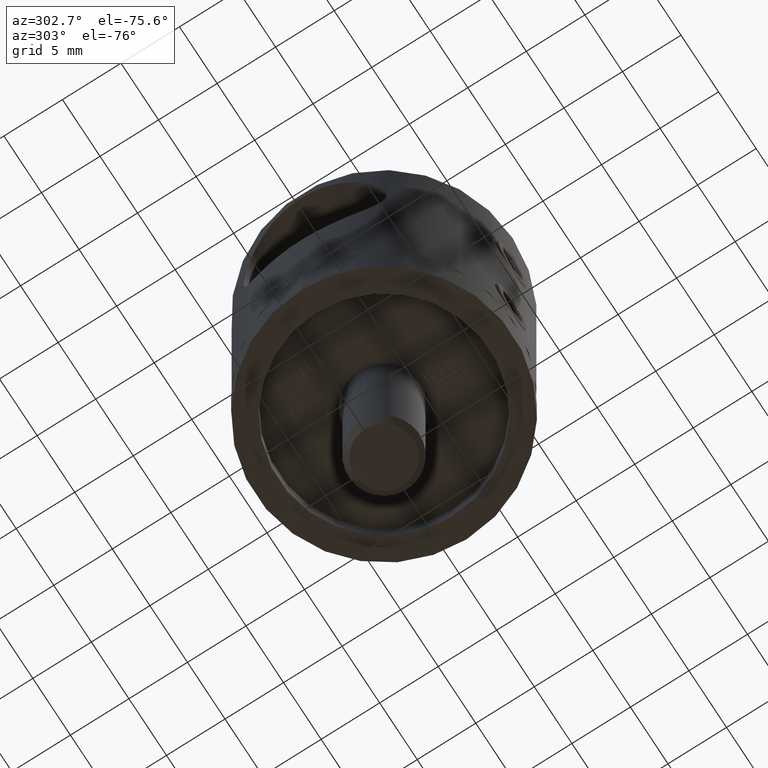
[diagram: clean part render]
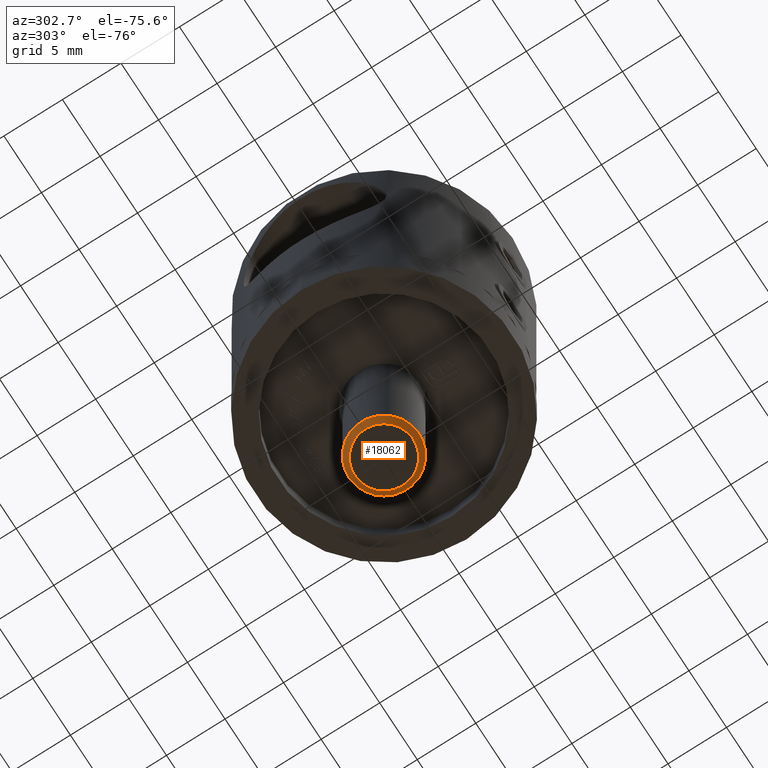
[diagram: same view with one face highlighted and labeled with its STEP entity id]
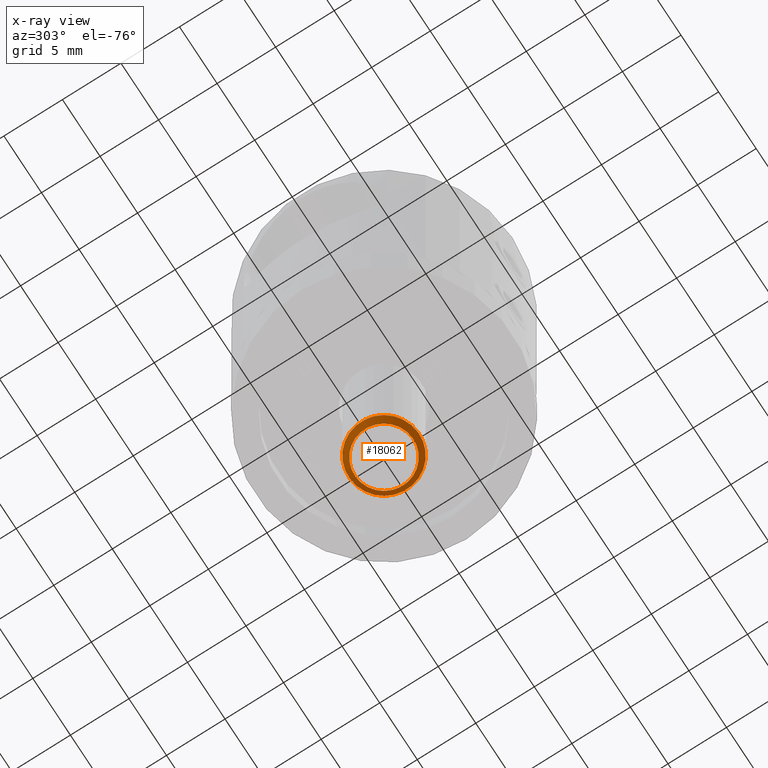
[diagram: x-ray of the same camera — body ghosted, the highlighted face saturated]
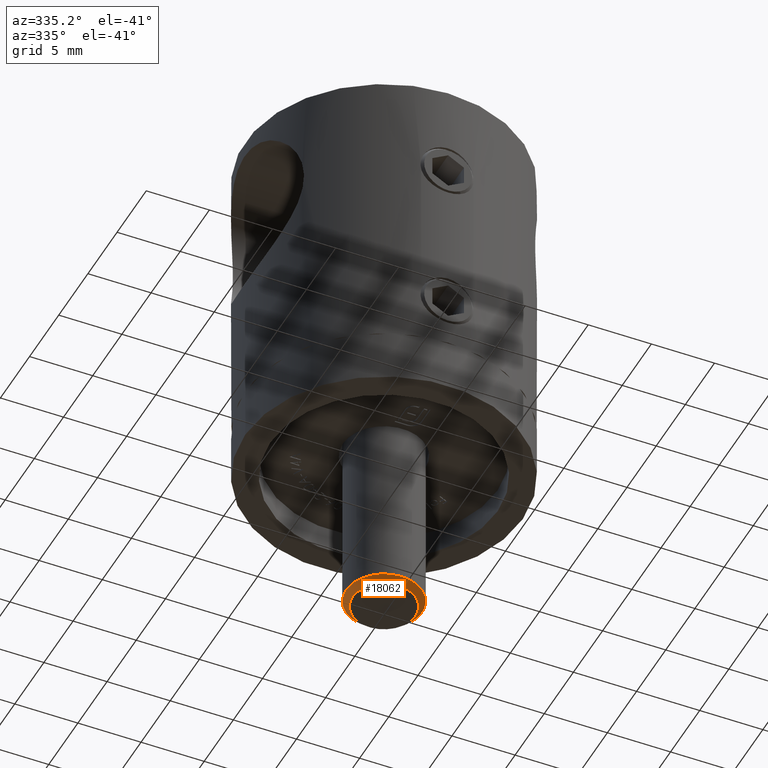
[diagram: same view with one face highlighted and labeled with its STEP entity id]
A machine part, auxiliary view. The second image highlights one B-rep face of the part: STEP entity #18062.
The next image is the same camera in x-ray: the body ghosted, the highlighted face saturated — about 0% of this face is hidden behind the body in this view.
A second angle (auxiliary view) of the same face is appended — the face is thin or edge-on in the first view.
In plain terms, the highlighted conical surface has half-angle 45 deg.
Its self-contained STEP definition (entity closure, byte-faithful):
#2823 = CIRCLE ( 'NONE', #16613, 2.500000000000010214 ) ;
#2887 = DIRECTION ( 'NONE',  ( -3.081487911019577365E-33, 1.000000000000000000, -1.725633230170963324E-31 ) ) ;
#2898 = ORIENTED_EDGE ( 'NONE', *, *, #20961, .F. ) ;
#3220 = CARTESIAN_POINT ( 'NONE',  ( -4.814824860968089633E-32, -11.99999999999999645, -3.000000000000012879 ) ) ;
#3478 = VERTEX_POINT ( 'NONE', #3220 ) ;
#4383 = DIRECTION ( 'NONE',  ( 3.081487911019577365E-33, -1.000000000000000000, 1.725633230170963324E-31 ) ) ;
#5284 = VERTEX_POINT ( 'NONE', #16633 ) ;
#7530 = CARTESIAN_POINT ( 'NONE',  ( -4.814824860968089633E-32, -11.99999999999999645, 3.274080905458300950E-30 ) ) ;
#7599 = DIRECTION ( 'NONE',  ( 0.000000000000000000, 0.000000000000000000, -1.000000000000000000 ) ) ;
#7780 = CARTESIAN_POINT ( 'NONE',  ( 0.000000000000000000, -12.50000000000000000, 1.733336949948512268E-30 ) ) ;
#8268 = CONICAL_SURFACE ( 'NONE', #13806, 2.500000000000010214, 0.7853981633974457255 ) ;
#10246 = EDGE_LOOP ( 'NONE', ( #17995 ) ) ;
#11233 = CARTESIAN_POINT ( 'NONE',  ( 0.000000000000000000, -12.50000000000000000, 1.733336949948512268E-30 ) ) ;
#12382 = AXIS2_PLACEMENT_3D ( 'NONE', #7530, #15953, #7599 ) ;
#12804 = FACE_OUTER_BOUND ( 'NONE', #10246, .T. ) ;
#13806 = AXIS2_PLACEMENT_3D ( 'NONE', #11233, #2887, #16391 ) ;
#14434 = DIRECTION ( 'NONE',  ( 0.000000000000000000, 0.000000000000000000, -1.000000000000000000 ) ) ;
#15740 = CIRCLE ( 'NONE', #12382, 3.000000000000012879 ) ;
#15953 = DIRECTION ( 'NONE',  ( -3.081487911019577365E-33, 1.000000000000000000, -1.725633230170963324E-31 ) ) ;
#16208 = FACE_BOUND ( 'NONE', #19254, .T. ) ;
#16271 = EDGE_CURVE ( 'NONE', #3478, #3478, #15740, .T. ) ;
#16391 = DIRECTION ( 'NONE',  ( 0.000000000000000000, 0.000000000000000000, 1.000000000000000000 ) ) ;
#16613 = AXIS2_PLACEMENT_3D ( 'NONE', #7780, #4383, #14434 ) ;
#16633 = CARTESIAN_POINT ( 'NONE',  ( 0.000000000000000000, -12.50000000000000000, -2.500000000000010214 ) ) ;
#17995 = ORIENTED_EDGE ( 'NONE', *, *, #16271, .F. ) ;
#18062 = ADVANCED_FACE ( 'NONE', ( #12804, #16208 ), #8268, .T. ) ;
#19254 = EDGE_LOOP ( 'NONE', ( #2898 ) ) ;
#20961 = EDGE_CURVE ( 'NONE', #5284, #5284, #2823, .T. ) ;